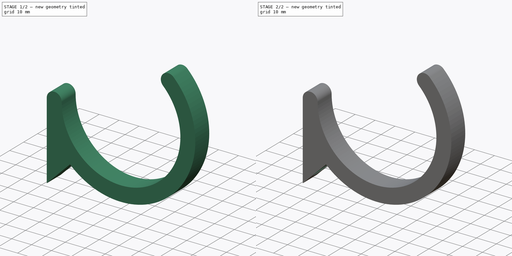
[diagram: build sequence overview — one tinted view per stage of 2, left to right]
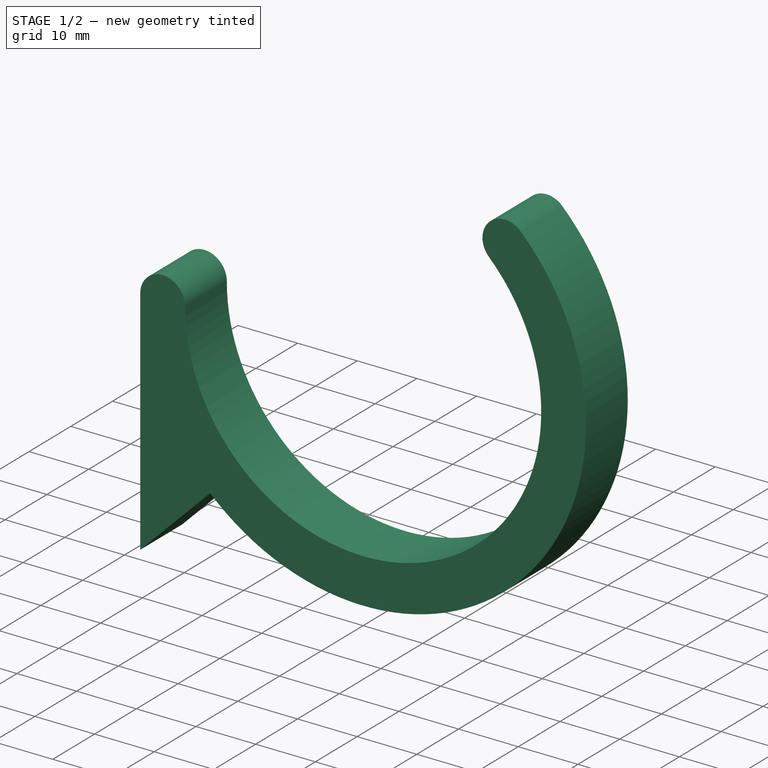
[diagram: stage 1 of 2 — iso view after this stage's code; geometry added in this stage tinted green]
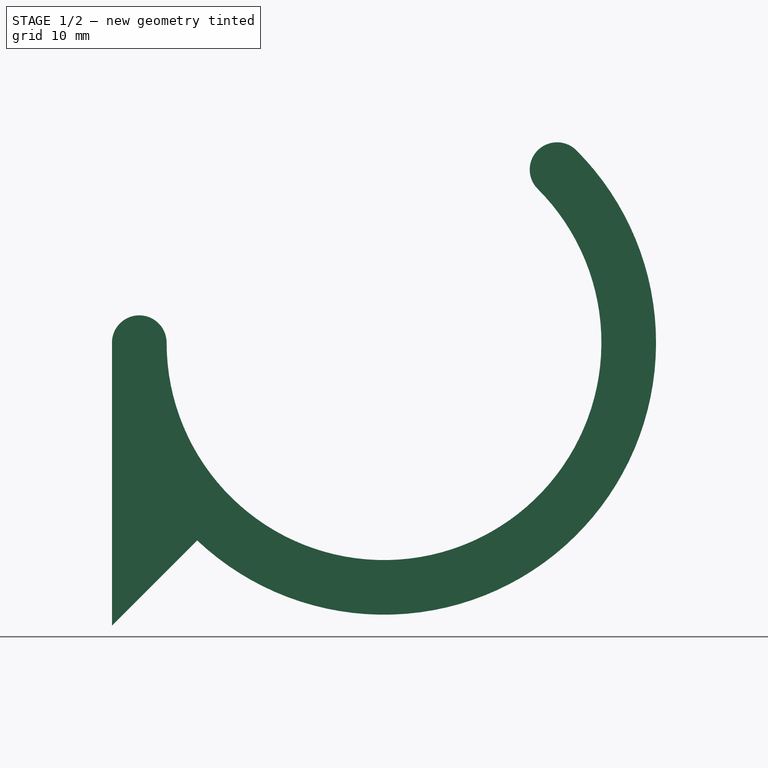
[diagram: stage 1 of 2 — front view after this stage's code; geometry added in this stage tinted green]
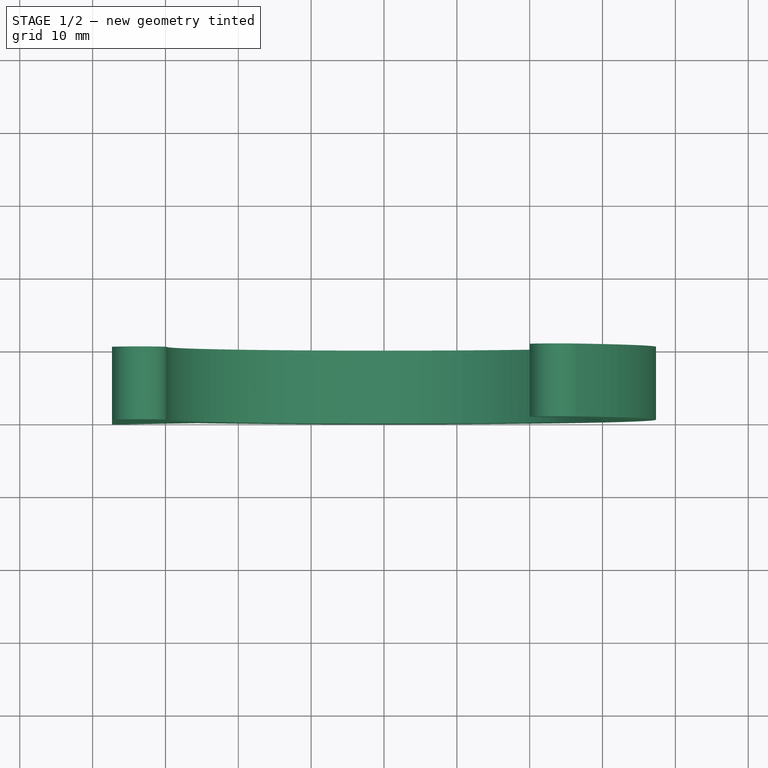
[diagram: stage 1 of 2 — top view after this stage's code; geometry added in this stage tinted green]
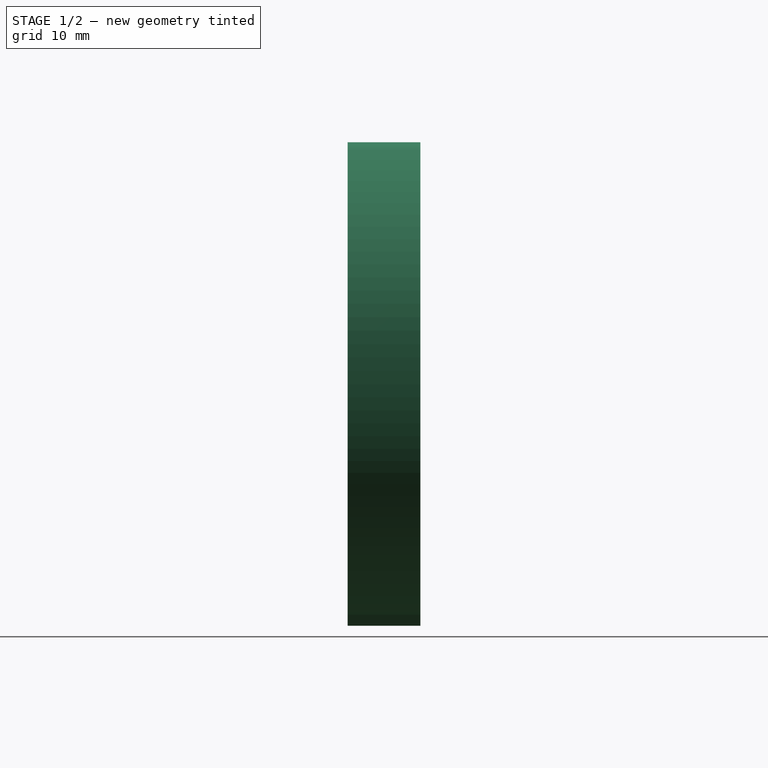
[diagram: stage 1 of 2 — right view after this stage's code; geometry added in this stage tinted green]
FCSTD DOCUMENT  (FreeCAD 0.20R29177 +233 (Git))
Label: pvc_2in_bracket
License: All rights reserved
LicenseURL: http://en.wikipedia.org/wiki/All_rights_reserved
objects: Sketcher::SketchObject×2, PartDesign::Pad×1, PartDesign::Hole×1, PartDesign::Body×1
note: 7 computed .brp shape members not serialized (recipe doc carries the construction recipe); baked Part::Feature solids carry a one-line shape summary decoded from their .brp

FEATURE [Sketcher::SketchObject] Sketch
  FullyConstrained = true
  MapMode = 5
  Placement = pos=(0,0,0) rot=(1,0,0;1.5708rad)
  Support = -> [XZ_Plane]
  sketch-geometry (11):
    g0: Circle CenterX=0 CenterY=0 CenterZ=0 NormalX=0 NormalY=0 NormalZ=1 AngleXU=0 Radius=37.345
    g1: LineSegment StartX=-37.345 StartY=5e-16 StartZ=0 EndX=-37.345 EndY=-38.855 EndZ=0
    g2: LineSegment StartX=-37.345 StartY=-38.855 StartZ=0 EndX=-25.6411 EndY=-27.1511 EndZ=0
    g3: GeomPoint X=0 Y=37.345 Z=0
    g4: Circle CenterX=0 CenterY=0 CenterZ=0 NormalX=0 NormalY=0 NormalZ=1 AngleXU=0 Radius=29.845
    g5: GeomPoint X=0 Y=29.845 Z=0
    g6: ArcOfCircle CenterX=0 CenterY=0 CenterZ=0 NormalX=0 NormalY=0 NormalZ=1 AngleXU=0 Radius=29.845 StartAngle=3.14159 EndAngle=7.06858
    g7: LineSegment StartX=0 StartY=0 StartZ=0 EndX=21.1036 EndY=21.1036 EndZ=0
    g8: ArcOfCircle CenterX=0 CenterY=0 CenterZ=0 NormalX=0 NormalY=0 NormalZ=1 AngleXU=0 Radius=37.345 StartAngle=3.95559 EndAngle=7.06858
    g9: ArcOfCircle CenterX=-33.595 CenterY=0 CenterZ=0 NormalX=0 NormalY=0 NormalZ=1 AngleXU=0 Radius=3.75 StartAngle=0 EndAngle=3.14159
    g10: ArcOfCircle CenterX=23.7553 CenterY=23.7553 CenterZ=0 NormalX=0 NormalY=0 NormalZ=1 AngleXU=0 Radius=3.75 StartAngle=0.785398 EndAngle=3.92699
  constraints (31):
    c: Coincident(g0,g-1)
    c: PointOnObject(g1,g-1)
    c: Vertical(g1)
    c: Coincident(g2,g1)
    c: Angle(g2,g1) = 0.785398
    c: PointOnObject(g2,g0)
    c: PointOnObject(g1,g0)
    c: PointOnObject(g3,g0)
    c: PointOnObject(g3,g-2)
    c: DistanceY(g1,g3) = 76.2
    c: Coincident(g4,g0)
    c: PointOnObject(g5,g4)
    c: PointOnObject(g5,g-2)
    c: DistanceY(g5,g3) = 7.5
    c: PointOnObject(g6,g4)
    c: PointOnObject(g6,g-1)
    c: Coincident(g6,g0)
    c: Coincident(g7,g6)
    c: Coincident(g7,g6)
    c: Angle(g-1,g7) = 0.785398
    c: Coincident(g8,g6)
    c: PointOnObject(g8,g0)
    c: PointOnObject(g8,g2)
    c: PointOnObject(g8,g7)
    c: Coincident(g9,g1)
    c: Coincident(g9,g6)
    c: Coincident(g10,g6)
    c: Coincident(g10,g8)
    c: PointOnObject(g10,g7)
    c: PointOnObject(g9,g-1)
    c: Diameter(g4) = 59.69
FEATURE [PartDesign::Pad] Pad
  Direction = (0,-1,-2e-16)
  Length = 10
  Length2 = 10
  Placement = pos=(0,0,0) rot=(1,0,0;1.5708rad)
  Profile = -> Sketch
  ReferenceAxis = -> Sketch [N_Axis]
  Type = 0
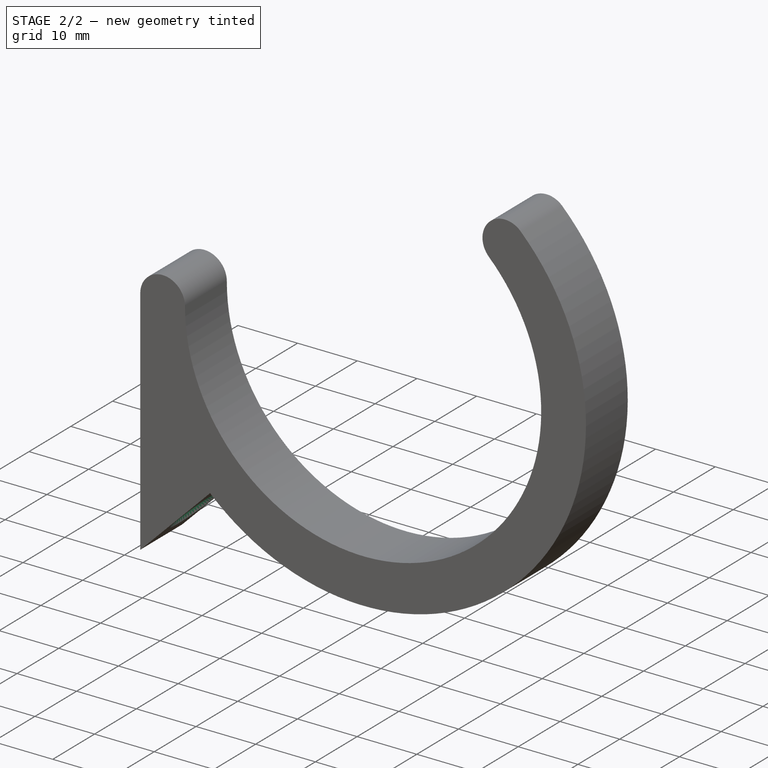
[diagram: stage 2 of 2 — iso view after this stage's code; geometry added in this stage tinted green]
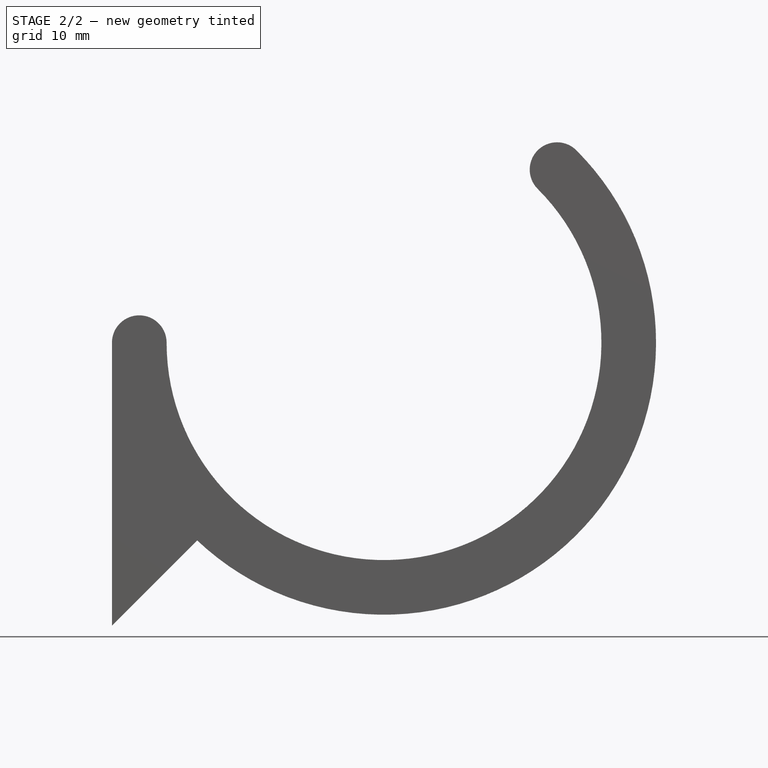
[diagram: stage 2 of 2 — front view after this stage's code; geometry added in this stage tinted green]
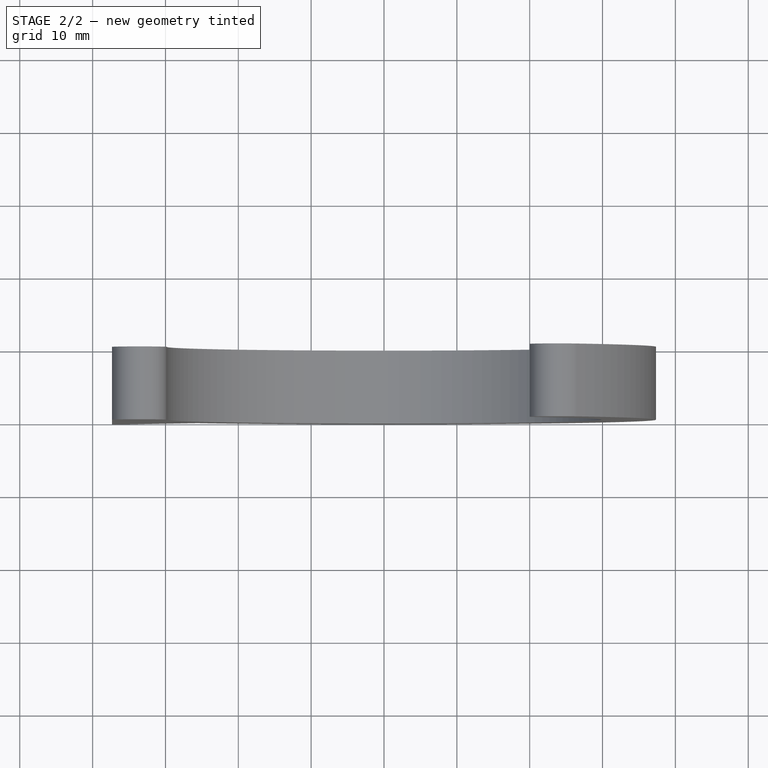
[diagram: stage 2 of 2 — top view after this stage's code; geometry added in this stage tinted green]
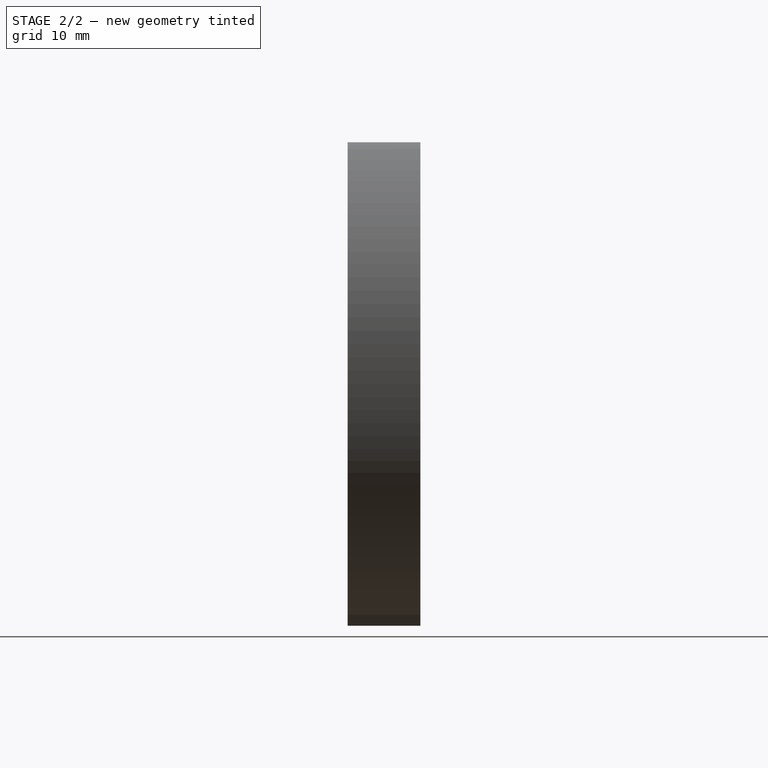
[diagram: stage 2 of 2 — right view after this stage's code; geometry added in this stage tinted green]
FEATURE [Sketcher::SketchObject] Sketch002
  ExternalGeometry = -> [Pad]
  FullyConstrained = true
  MapMode = 5
  Placement = pos=(0.755,2e-16,-0.755) rot=(0.92388,0,0.382683;3.14159rad)
  Support = -> [Pad]
  sketch-geometry (3):
    g0: LineSegment StartX=-45.6056 StartY=10 StartZ=0 EndX=-45.6056 EndY=0 EndZ=0
    g1: LineSegment StartX=-53.8815 StartY=5 StartZ=0 EndX=-37.3297 EndY=5 EndZ=0
    g2: Circle CenterX=-45.6056 CenterY=5 CenterZ=0 NormalX=0 NormalY=0 NormalZ=1 AngleXU=0 Radius=0.5
  constraints (9):
    c: PointOnObject(g0,g-5)
    c: Vertical(g0)
    c: Symmetric(g-4,g-4,g0)
    c: PointOnObject(g1,g-6)
    c: Horizontal(g1)
    c: Symmetric(g-4,g-5,g1)
    c: PointOnObject(g2,g1)
    c: PointOnObject(g2,g0)
    c: Diameter(g2) = 1
FEATURE [PartDesign::Hole] Hole001
  BaseFeature = -> Pad
  CustomThreadClearance = 0
  Depth = 195.23
  DepthType = 0
  Diameter = 5
  DrillForDepth = false
  DrillPoint = 1
  DrillPointAngle = 118
  HoleCutCountersinkAngle = 90
  HoleCutCustomValues = false
  HoleCutDepth = 0
  HoleCutDiameter = 9
  HoleCutType = 2
  ModelThread = false
  Placement = pos=(0,0,0) rot=(1,0,0;1.5708rad)
  Profile = -> Sketch002
  Tapered = false
  TaperedAngle = 90
  ThreadClass = 0
  ThreadDepth = 195.23
  ThreadDepthType = 0
  ThreadDirection = 0
  ThreadFit = 0
  ThreadSize = 0
  ThreadType = 0
  Threaded = false
  UseCustomThreadClearance = false
FEATURE [PartDesign::Body] Body
  Group = -> [Sketch,Pad,Sketch002,Hole001]
  Origin = -> Origin
  Tip = -> Hole001
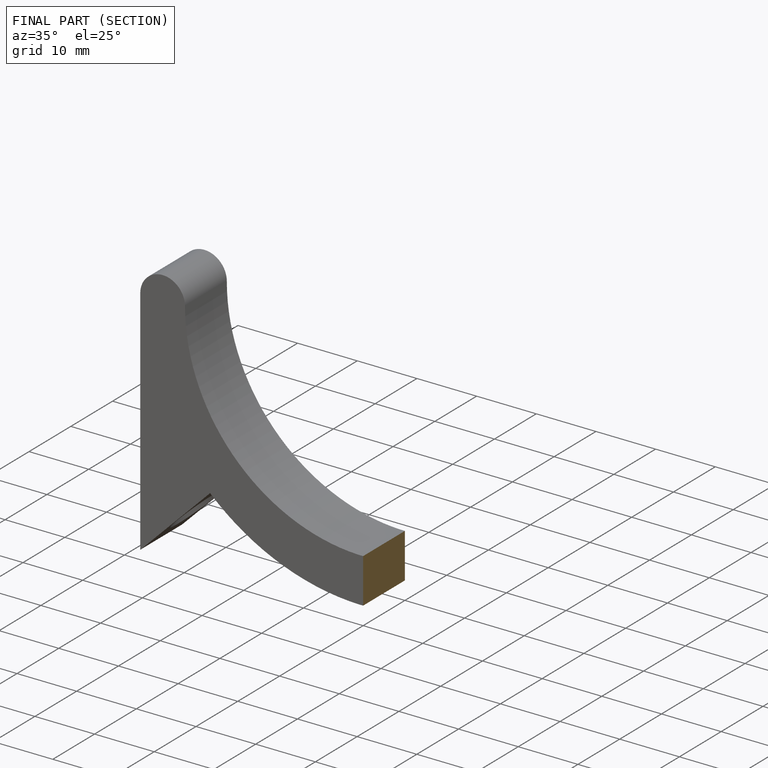
[diagram: finished part — half-section view (interior)]
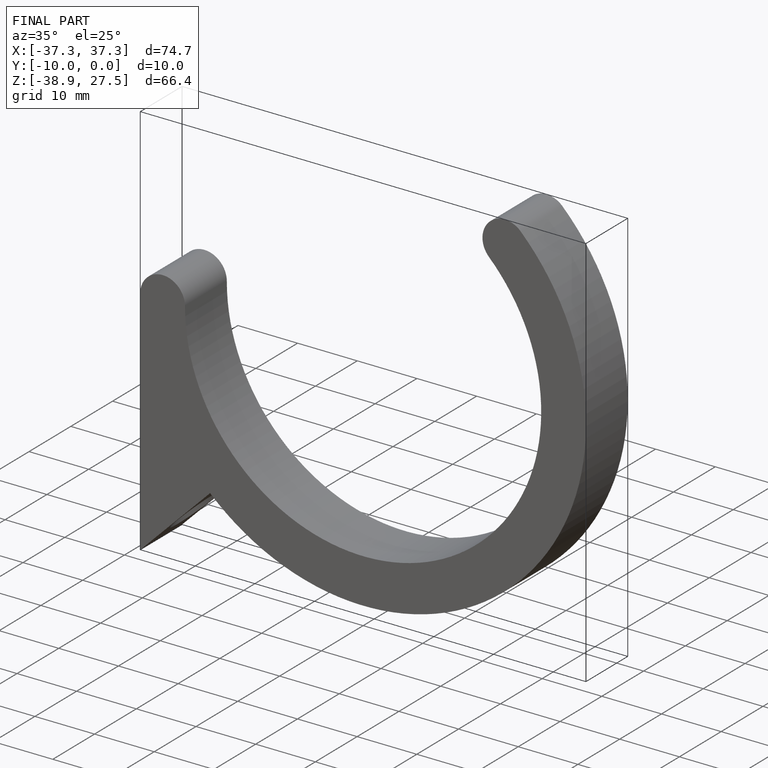
[diagram: finished part — iso view with bounding-box wireframe]
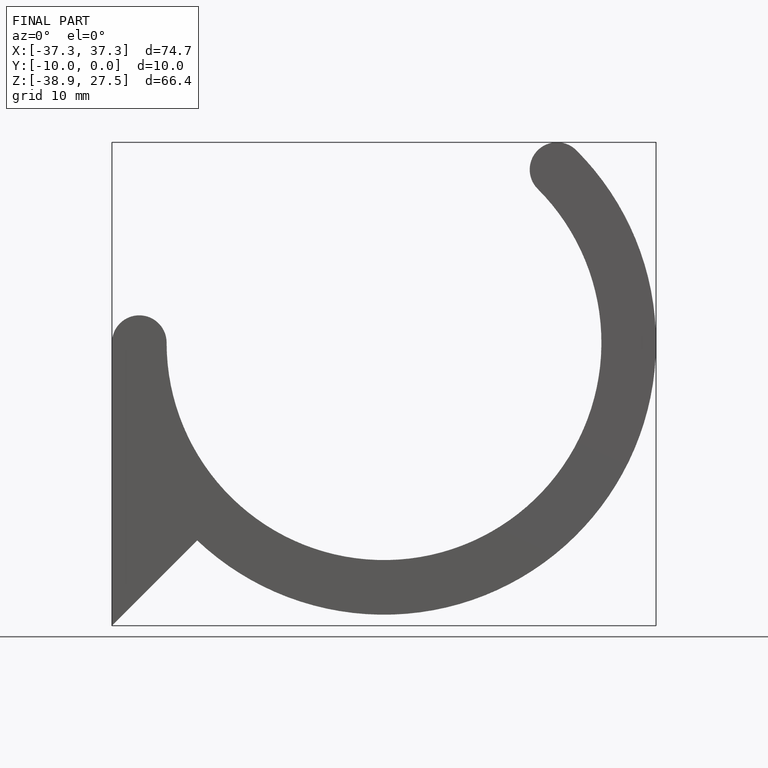
[diagram: finished part — front view with bounding-box wireframe]
